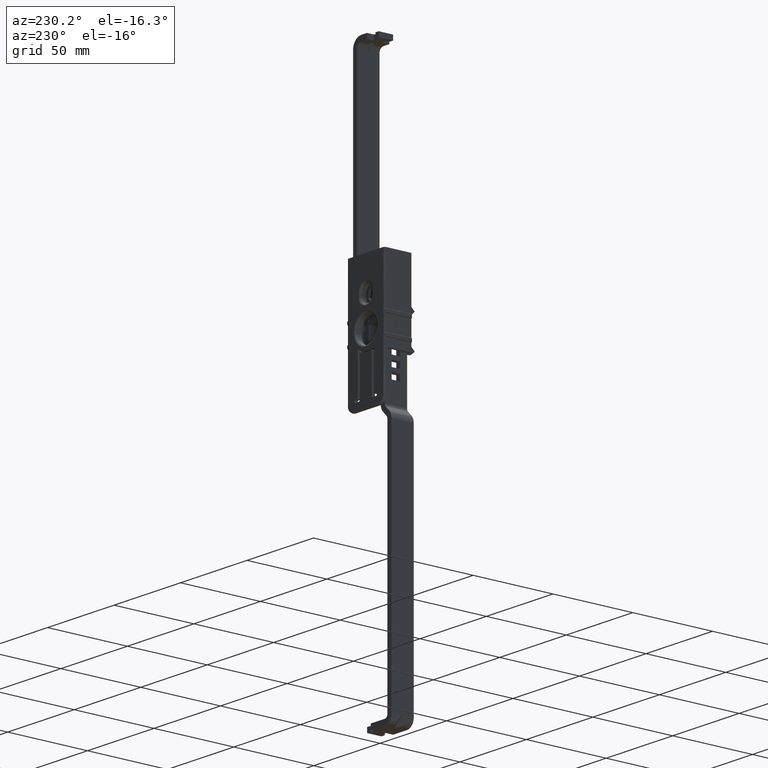
[diagram: clean part render]
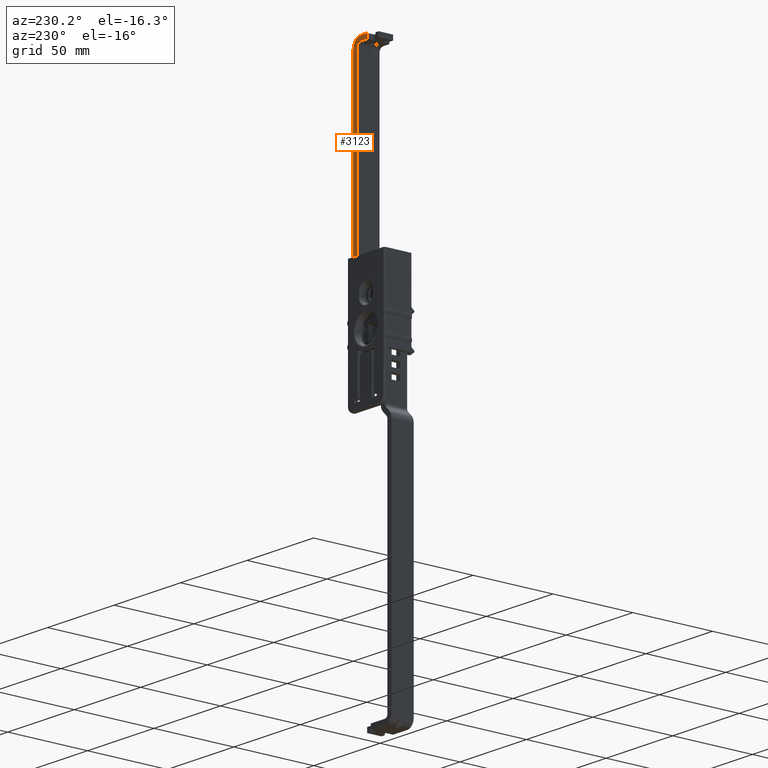
[diagram: same view with one face highlighted and labeled with its STEP entity id]
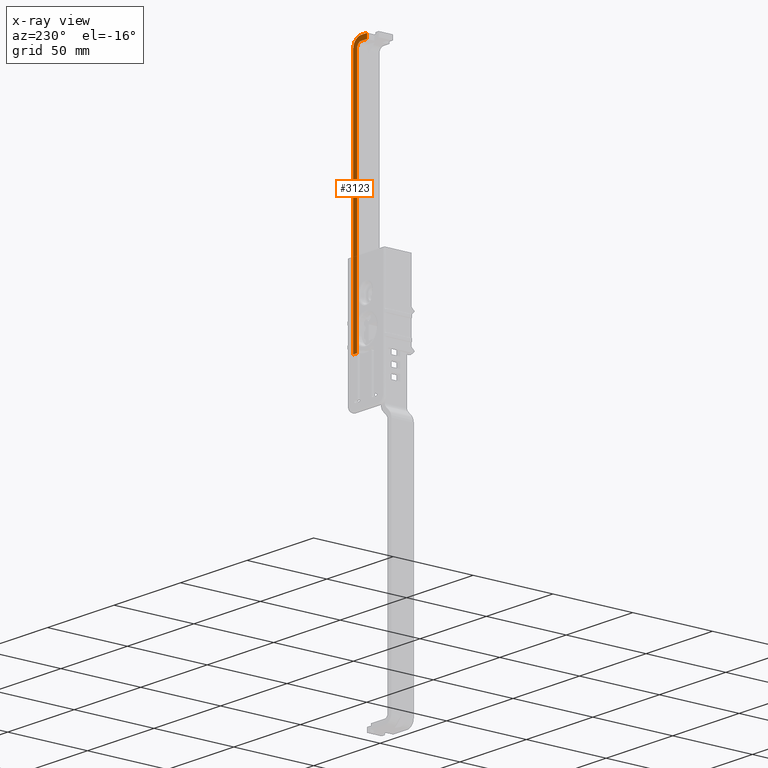
[diagram: x-ray of the same camera — body ghosted, the highlighted face saturated]
A machine part, auxiliary view. The second image highlights one B-rep face of the part: STEP entity #3123.
The next image is the same camera in x-ray: the body ghosted, the highlighted face saturated — about 0% of this face is hidden behind the body in this view.
In plain terms, the highlighted face is a freeform B-spline surface patch.
Its self-contained STEP definition (entity closure, byte-faithful):
#2154=CARTESIAN_POINT('',(1.399961913869238,7.000000759959280,149.000004395497600));
#2155=VERTEX_POINT('',#2154);
#2161=CARTESIAN_POINT('',(1.399961913869236,7.000000332482160,146.000004253005190));
#2162=VERTEX_POINT('',#2161);
#2163=CARTESIAN_POINT('',(1.399961913869236,7.000000332482160,146.000004253005190));
#2164=CARTESIAN_POINT('',(1.399961913869238,7.000000759959280,149.000004395497600));
#2165=QUASI_UNIFORM_CURVE('',1,(#2163,#2164),.UNSPECIFIED.,.F.,.U.);
#2166=EDGE_CURVE('',#2162,#2155,#2165,.T.);
#2931=CARTESIAN_POINT('',(8.900000041257499,7.000000332482160,-9.999997423216600));
#2932=VERTEX_POINT('',#2931);
#2938=CARTESIAN_POINT('',(11.900000183749899,7.000000332482160,-9.999997423216600));
#2939=VERTEX_POINT('',#2938);
#2940=CARTESIAN_POINT('',(11.900000183749899,7.000000332482160,-9.999997423216600));
#2941=CARTESIAN_POINT('',(8.900000041257499,7.000000332482160,-9.999997423216600));
#2942=QUASI_UNIFORM_CURVE('',1,(#2940,#2941),.UNSPECIFIED.,.F.,.U.);
#2943=EDGE_CURVE('',#2939,#2932,#2942,.T.);
#2966=CARTESIAN_POINT('',(11.900000183749921,7.000000332482160,143.000004395497600));
#2967=VERTEX_POINT('',#2966);
#2968=CARTESIAN_POINT('',(11.900000183749921,7.000000332482160,143.000004395497600));
#2969=CARTESIAN_POINT('',(11.900000183749899,7.000000332482160,-9.999997423216600));
#2970=QUASI_UNIFORM_CURVE('',1,(#2968,#2969),.UNSPECIFIED.,.F.,.U.);
#2971=EDGE_CURVE('',#2967,#2939,#2970,.T.);
#3020=CARTESIAN_POINT('',(8.900000041257520,7.000000332482160,143.000004253005190));
#3021=VERTEX_POINT('',#3020);
#3027=CARTESIAN_POINT('',(8.900000041257499,7.000000332482160,-9.999997423216600));
#3028=CARTESIAN_POINT('',(8.900000041257520,7.000000332482160,143.000004253005190));
#3029=QUASI_UNIFORM_CURVE('',1,(#3027,#3028),.UNSPECIFIED.,.F.,.U.);
#3030=EDGE_CURVE('',#2932,#3021,#3029,.T.);
#3072=CARTESIAN_POINT('',(12.424477074979350,7.000000332482160,-17.942047205888521));
#3073=CARTESIAN_POINT('',(0.875484741006836,7.000000332482160,-17.942047205888521));
#3074=CARTESIAN_POINT('',(12.424477074979350,7.000000332482160,156.942058442881890));
#3075=CARTESIAN_POINT('',(0.875484741006836,7.000000332482160,156.942058442881890));
#3076=B_SPLINE_SURFACE_WITH_KNOTS('',1,1,((#3072,#3074),(#3073,#3075)),.UNSPECIFIED.,.F.,.F.,.U.,(2,2),(2,2),(0.0,11.548992333972510),(0.0,174.884105648770400),.UNSPECIFIED.);
#3077=ORIENTED_EDGE('',*,*,#2166,.T.);
#3078=CARTESIAN_POINT('',(5.900000183749860,7.000000332482160,149.000004395497600));
#3079=VERTEX_POINT('',#3078);
#3080=CARTESIAN_POINT('',(1.399961913869238,7.000000759959280,149.000004395497600));
#3081=CARTESIAN_POINT('',(5.900000183749860,7.000000332482160,149.000004395497600));
#3082=QUASI_UNIFORM_CURVE('',1,(#3080,#3081),.UNSPECIFIED.,.F.,.U.);
#3083=EDGE_CURVE('',#2155,#3079,#3082,.T.);
#3084=ORIENTED_EDGE('',*,*,#3083,.T.);
#3085=CARTESIAN_POINT('',(5.900000183749930,7.000000332482160,149.000004395497600));
#3086=CARTESIAN_POINT('',(11.900000183749931,7.000000332482161,149.000004395497680));
#3087=CARTESIAN_POINT('',(11.900000183749929,7.000000332482160,143.000004395497600));
#3095=(BOUNDED_CURVE()B_SPLINE_CURVE(2,(#3085,#3086,#3087),.UNSPECIFIED.,.F.,.U.)CURVE()GEOMETRIC_REPRESENTATION_ITEM()QUASI_UNIFORM_CURVE()RATIONAL_B_SPLINE_CURVE((1.0,0.707106781186548,1.0))REPRESENTATION_ITEM(''));
#3096=EDGE_CURVE('',#3079,#2967,#3095,.T.);
#3097=ORIENTED_EDGE('',*,*,#3096,.T.);
#3098=ORIENTED_EDGE('',*,*,#2971,.T.);
#3099=ORIENTED_EDGE('',*,*,#2943,.T.);
#3100=ORIENTED_EDGE('',*,*,#3030,.T.);
#3101=CARTESIAN_POINT('',(5.900000041257520,7.000000332482160,146.000004253005190));
#3102=VERTEX_POINT('',#3101);
#3103=CARTESIAN_POINT('',(5.900000041257520,7.000000332482160,146.000004253005190));
#3104=CARTESIAN_POINT('',(8.900000041257520,7.000000332482161,146.000004253005270));
#3105=CARTESIAN_POINT('',(8.900000041257520,7.000000332482160,143.000004253005190));
#3113=(BOUNDED_CURVE()B_SPLINE_CURVE(2,(#3103,#3104,#3105),.UNSPECIFIED.,.F.,.U.)CURVE()GEOMETRIC_REPRESENTATION_ITEM()QUASI_UNIFORM_CURVE()RATIONAL_B_SPLINE_CURVE((1.0,0.707106781186548,1.0))REPRESENTATION_ITEM(''));
#3114=EDGE_CURVE('',#3102,#3021,#3113,.T.);
#3115=ORIENTED_EDGE('',*,*,#3114,.F.);
#3116=CARTESIAN_POINT('',(5.900000041257520,7.000000332482160,146.000004253005190));
#3117=CARTESIAN_POINT('',(1.399961913869236,7.000000332482160,146.000004253005190));
#3118=QUASI_UNIFORM_CURVE('',1,(#3116,#3117),.UNSPECIFIED.,.F.,.U.);
#3119=EDGE_CURVE('',#3102,#2162,#3118,.T.);
#3120=ORIENTED_EDGE('',*,*,#3119,.T.);
#3121=EDGE_LOOP('',(#3077,#3084,#3097,#3098,#3099,#3100,#3115,#3120));
#3122=FACE_OUTER_BOUND('',#3121,.T.);
#3123=ADVANCED_FACE('',(#3122),#3076,.T.);